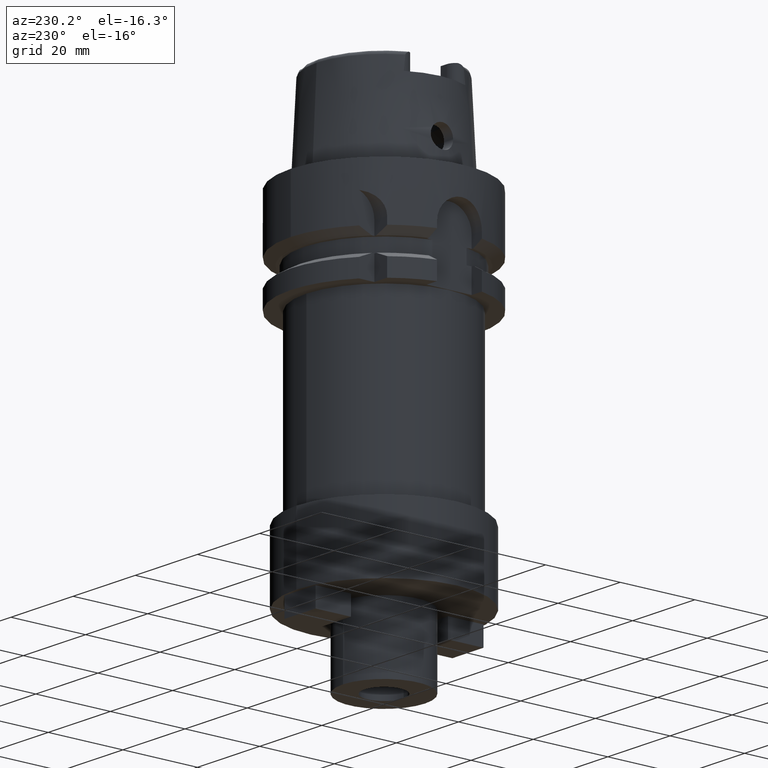
[diagram: clean part render]
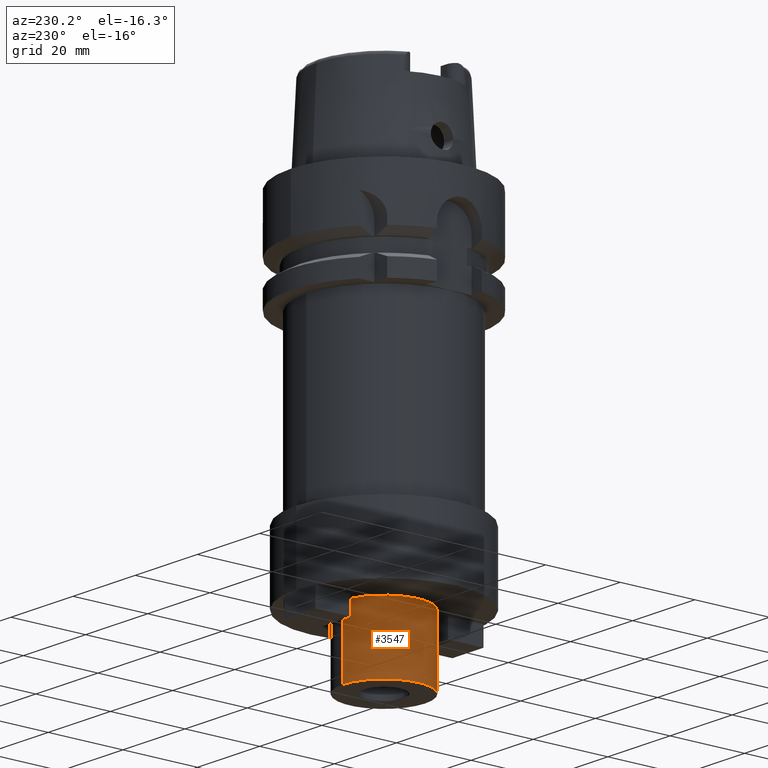
[diagram: same view with one face highlighted and labeled with its STEP entity id]
A machine part, auxiliary view. The second image highlights one B-rep face of the part: STEP entity #3547.
In plain terms, the highlighted cylindrical surface (partial cylindrical patch) has radius 11 mm, axis along (0, 0, 1).
Its self-contained STEP definition (entity closure, byte-faithful):
#1025=CARTESIAN_POINT('',(0.E0,0.E0,-1.08E2));
#1026=DIRECTION('',(0.E0,0.E0,1.E0));
#1027=DIRECTION('',(0.E0,1.E0,0.E0));
#1028=AXIS2_PLACEMENT_3D('',#1025,#1026,#1027);
#1049=DIRECTION('',(0.E0,0.E0,-1.E0));
#1050=VECTOR('',#1049,1.8E1);
#1051=CARTESIAN_POINT('',(0.E0,1.1E1,-9.E1));
#1052=LINE('',#1051,#1050);
#1056=DIRECTION('',(0.E0,0.E0,-1.E0));
#1057=VECTOR('',#1056,1.8E1);
#1058=CARTESIAN_POINT('',(0.E0,-1.1E1,-9.E1));
#1059=LINE('',#1058,#1057);
#1079=CARTESIAN_POINT('',(0.E0,0.E0,-9.E1));
#1080=DIRECTION('',(0.E0,0.E0,-1.E0));
#1081=DIRECTION('',(0.E0,-1.E0,0.E0));
#1082=AXIS2_PLACEMENT_3D('',#1079,#1080,#1081);
#2569=CARTESIAN_POINT('',(0.E0,-1.1E1,-1.08E2));
#2570=CARTESIAN_POINT('',(0.E0,1.1E1,-1.08E2));
#2571=VERTEX_POINT('',#2569);
#2572=VERTEX_POINT('',#2570);
#2573=CARTESIAN_POINT('',(0.E0,1.1E1,-9.E1));
#2574=VERTEX_POINT('',#2573);
#2575=CARTESIAN_POINT('',(0.E0,-1.1E1,-9.E1));
#2576=VERTEX_POINT('',#2575);
#3535=CARTESIAN_POINT('',(0.E0,0.E0,-1.1465E2));
#3536=DIRECTION('',(0.E0,0.E0,1.E0));
#3537=DIRECTION('',(0.E0,1.E0,0.E0));
#3538=AXIS2_PLACEMENT_3D('',#3535,#3536,#3537);
#3539=CYLINDRICAL_SURFACE('',#3538,1.1E1);
#3540=ORIENTED_EDGE('',*,*,#3525,.F.);
#3542=ORIENTED_EDGE('',*,*,#3541,.F.);
#3543=ORIENTED_EDGE('',*,*,#3528,.T.);
#3544=ORIENTED_EDGE('',*,*,#3511,.F.);
#3545=EDGE_LOOP('',(#3540,#3542,#3543,#3544));
#3546=FACE_OUTER_BOUND('',#3545,.F.);
#1029=CIRCLE('',#1028,1.1E1);
#1083=CIRCLE('',#1082,1.1E1);
#3511=EDGE_CURVE('',#2572,#2571,#1029,.T.);
#3525=EDGE_CURVE('',#2574,#2572,#1052,.T.);
#3528=EDGE_CURVE('',#2576,#2571,#1059,.T.);
#3541=EDGE_CURVE('',#2576,#2574,#1083,.T.);
#3547=ADVANCED_FACE('',(#3546),#3539,.T.);